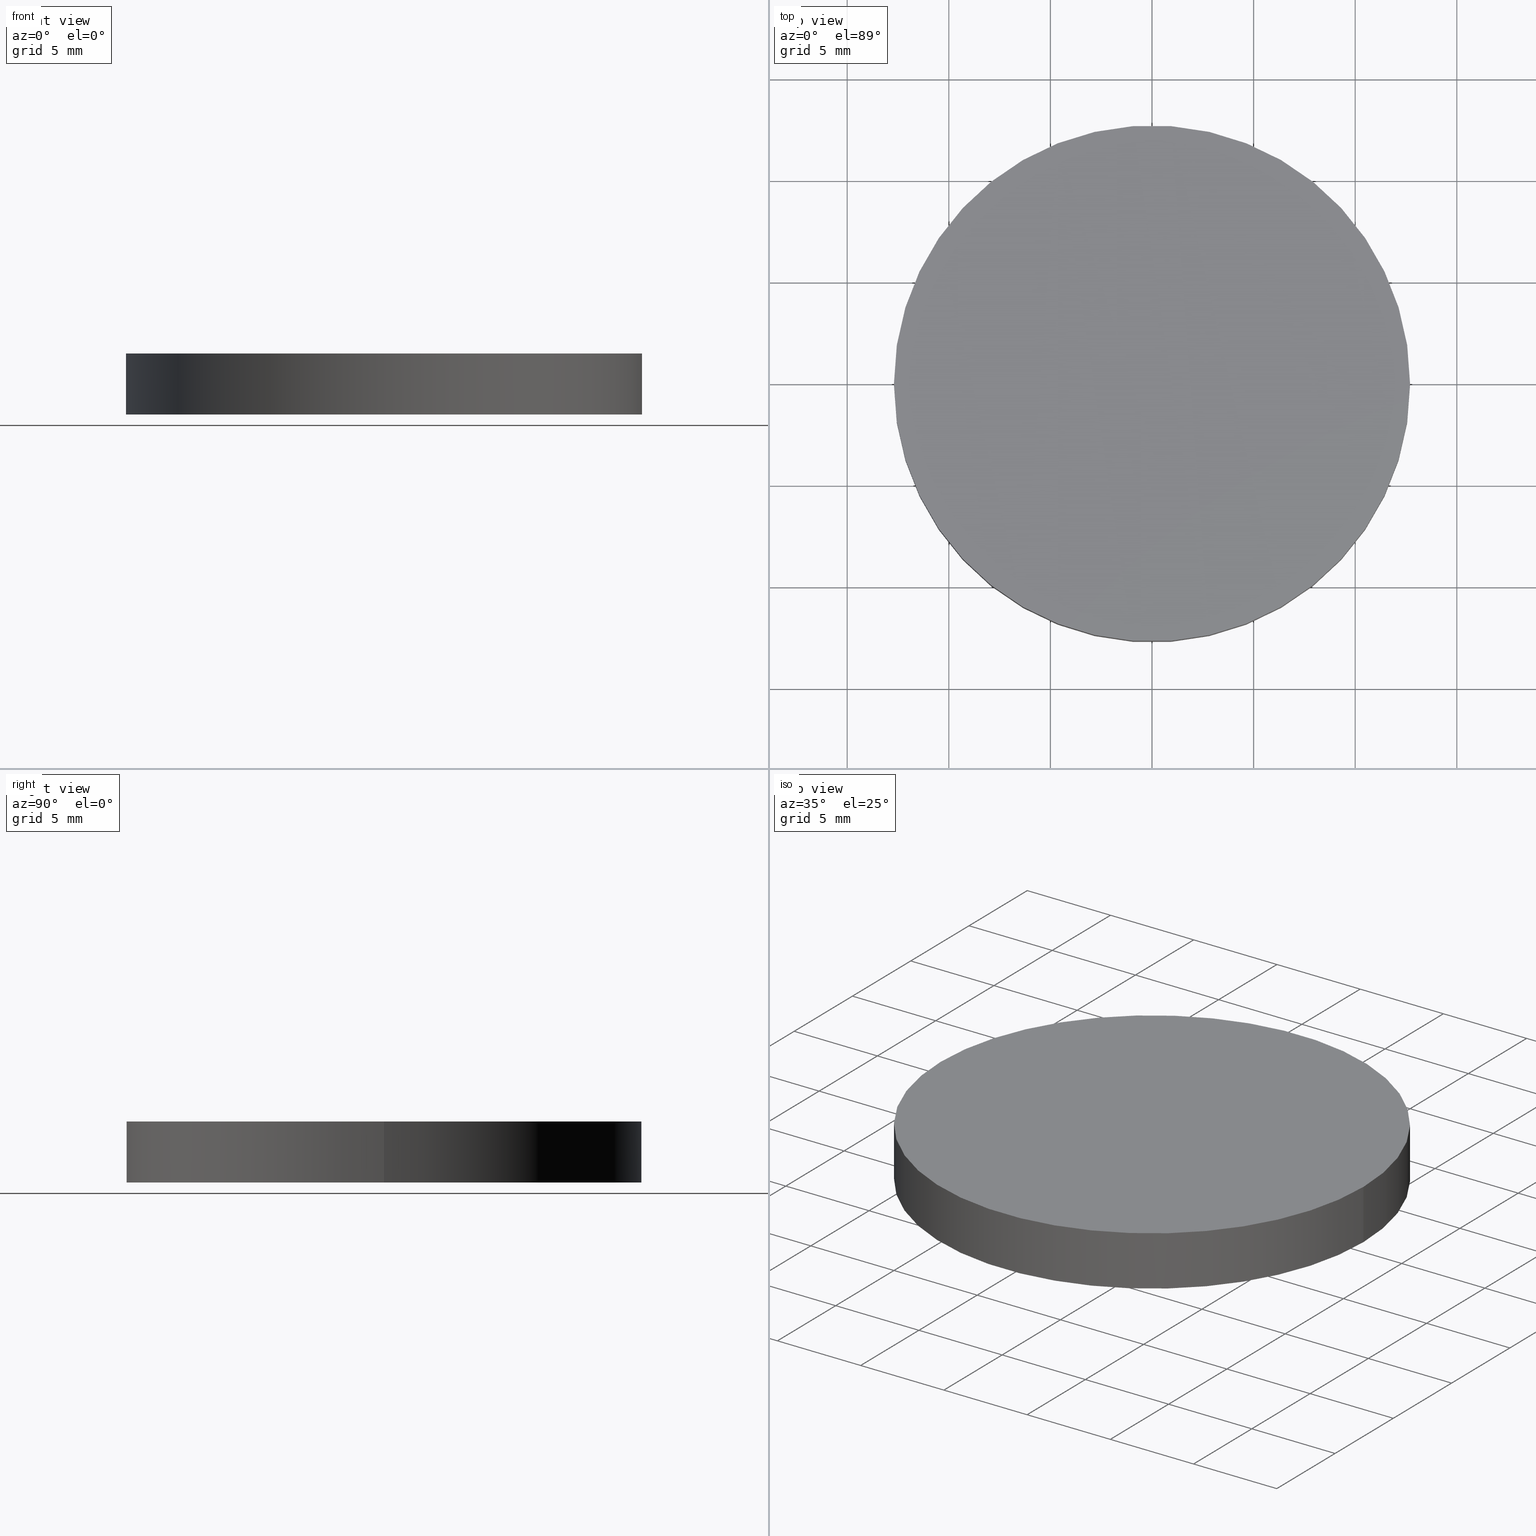
[diagram: canonical four-view strip — front | top / right | iso, engineering-drawing reading convention]
A machine part, canonical four-view strip (front | top / right | iso — engineering-drawing reading convention). The complete STEP part file that produces these views, byte-faithful:
ISO-10303-21;
HEADER;
FILE_DESCRIPTION (( 'STEP AP214' ),
    '1' );
FILE_NAME ('190144.STEP',
    '2019-07-18T02:43:49',
    ( 'user' ),
    ( '΢���й�' ),
    'SwSTEP 2.0',
    'SolidWorks 2016',
    '' );
FILE_SCHEMA (( 'AUTOMOTIVE_DESIGN' ));
ENDSEC;

DATA;
#1 = DIRECTION ( 'NONE',  ( 1.000000000000000000, 0.0000000000000000000, 0.0000000000000000000 ) ) ;
#2 = SURFACE_STYLE_FILL_AREA ( #110 ) ;
#3 =( NAMED_UNIT ( * ) SI_UNIT ( $, .STERADIAN. ) SOLID_ANGLE_UNIT ( ) );
#4 = DIRECTION ( 'NONE',  ( 0.0000000000000000000, 0.0000000000000000000, 1.000000000000000000 ) ) ;
#5 = DIRECTION ( 'NONE',  ( 0.0000000000000000000, 0.0000000000000000000, 1.000000000000000000 ) ) ;
#6 = PRESENTATION_LAYER_ASSIGNMENT (  '', '', ( #68 ) ) ;
#7 = ADVANCED_BREP_SHAPE_REPRESENTATION ( '190144', ( #36, #118 ), #77 ) ;
#8 =( LENGTH_UNIT ( ) NAMED_UNIT ( * ) SI_UNIT ( .MILLI., .METRE. ) );
#9 = PRODUCT_DEFINITION ( 'δ֪', '', #79, #48 ) ;
#10 = CIRCLE ( 'NONE', #62, 12.69999999999999900 ) ;
#11 = CLOSED_SHELL ( 'NONE', ( #86, #30, #76, #129 ) ) ;
#12 =( GEOMETRIC_REPRESENTATION_CONTEXT ( 3 ) GLOBAL_UNCERTAINTY_ASSIGNED_CONTEXT ( ( #54 ) ) GLOBAL_UNIT_ASSIGNED_CONTEXT ( ( #8, #74, #137 ) ) REPRESENTATION_CONTEXT ( 'NONE', 'WORKASPACE' ) );
#13 =( NAMED_UNIT ( * ) SI_UNIT ( $, .STERADIAN. ) SOLID_ANGLE_UNIT ( ) );
#14 =( LENGTH_UNIT ( ) NAMED_UNIT ( * ) SI_UNIT ( .MILLI., .METRE. ) );
#15 = DIRECTION ( 'NONE',  ( 1.000000000000000000, 0.0000000000000000000, 0.0000000000000000000 ) ) ;
#16 = CARTESIAN_POINT ( 'NONE',  ( -12.69999999999999900, 0.0000000000000000000, 3.000000000000000000 ) ) ;
#17 = SURFACE_SIDE_STYLE ('',( #78 ) ) ;
#18 = DIRECTION ( 'NONE',  ( -0.0000000000000000000, -0.0000000000000000000, -1.000000000000000000 ) ) ;
#19 = ORIENTED_EDGE ( 'NONE', *, *, #45, .T. ) ;
#20 = MECHANICAL_DESIGN_GEOMETRIC_PRESENTATION_REPRESENTATION (  '', ( #41 ), #12 ) ;
#21 = AXIS2_PLACEMENT_3D ( 'NONE', #124, #49, #113 ) ;
#22 = CIRCLE ( 'NONE', #29, 12.69999999999999900 ) ;
#23 =( LENGTH_UNIT ( ) NAMED_UNIT ( * ) SI_UNIT ( .MILLI., .METRE. ) );
#24 = DIRECTION ( 'NONE',  ( -0.0000000000000000000, -0.0000000000000000000, -1.000000000000000000 ) ) ;
#25 = CARTESIAN_POINT ( 'NONE',  ( 0.0000000000000000000, 0.0000000000000000000, 0.0000000000000000000 ) ) ;
#26 = DIRECTION ( 'NONE',  ( 0.0000000000000000000, 0.0000000000000000000, 1.000000000000000000 ) ) ;
#27 = CARTESIAN_POINT ( 'NONE',  ( 0.0000000000000000000, 0.0000000000000000000, 3.000000000000000000 ) ) ;
#28 = ORIENTED_EDGE ( 'NONE', *, *, #95, .T. ) ;
#29 = AXIS2_PLACEMENT_3D ( 'NONE', #103, #26, #93 ) ;
#30 = ADVANCED_FACE ( 'NONE', ( #130 ), #52, .T. ) ;
#31 = UNCERTAINTY_MEASURE_WITH_UNIT (LENGTH_MEASURE( 1.000000000000000100E-005 ), #23, 'distance_accuracy_value', 'NONE');
#32 = ORIENTED_EDGE ( 'NONE', *, *, #64, .F. ) ;
#33 = COLOUR_RGB ( '',1.000000000000000000, 1.000000000000000000, 1.000000000000000000 ) ;
#34 = ORIENTED_EDGE ( 'NONE', *, *, #95, .F. ) ;
#35 = SURFACE_SIDE_STYLE ('',( #2 ) ) ;
#36 = MANIFOLD_SOLID_BREP ( '͹̨-����1', #11 ) ;
#37 = DIRECTION ( 'NONE',  ( -1.000000000000000000, 0.0000000000000000000, 0.0000000000000000000 ) ) ;
#38 = DIRECTION ( 'NONE',  ( 0.0000000000000000000, 0.0000000000000000000, 1.000000000000000000 ) ) ;
#39 = VERTEX_POINT ( 'NONE', #16 ) ;
#40 = CARTESIAN_POINT ( 'NONE',  ( -12.69999999999999900, 0.0000000000000000000, 3.000000000000000000 ) ) ;
#41 = STYLED_ITEM ( 'NONE', ( #139 ), #36 ) ;
#42 = VECTOR ( 'NONE', #18, 1000.000000000000000 ) ;
#43 = EDGE_LOOP ( 'NONE', ( #19, #98 ) ) ;
#44 = PRESENTATION_LAYER_ASSIGNMENT (  '', '', ( #41 ) ) ;
#45 = EDGE_CURVE ( 'NONE', #39, #66, #22, .T. ) ;
#46 = FILL_AREA_STYLE_COLOUR ( '', #33 ) ;
#47 = DIRECTION ( 'NONE',  ( 0.0000000000000000000, 0.0000000000000000000, 1.000000000000000000 ) ) ;
#48 = PRODUCT_DEFINITION_CONTEXT ( 'detailed design', #131, 'design' ) ;
#49 = DIRECTION ( 'NONE',  ( 0.0000000000000000000, 0.0000000000000000000, 1.000000000000000000 ) ) ;
#50 = AXIS2_PLACEMENT_3D ( 'NONE', #82, #4, #71 ) ;
#51 = CARTESIAN_POINT ( 'NONE',  ( 0.0000000000000000000, 0.0000000000000000000, 3.000000000000000000 ) ) ;
#52 = CYLINDRICAL_SURFACE ( 'NONE', #138, 12.69999999999999900 ) ;
#53 = EDGE_CURVE ( 'NONE', #39, #94, #127, .T. ) ;
#54 = UNCERTAINTY_MEASURE_WITH_UNIT (LENGTH_MEASURE( 1.000000000000000100E-005 ), #8, 'distance_accuracy_value', 'NONE');
#55 = ORIENTED_EDGE ( 'NONE', *, *, #53, .F. ) ;
#56 = AXIS2_PLACEMENT_3D ( 'NONE', #51, #5, #72 ) ;
#57 = EDGE_CURVE ( 'NONE', #66, #39, #99, .T. ) ;
#58 = ORIENTED_EDGE ( 'NONE', *, *, #53, .T. ) ;
#59 = APPLICATION_PROTOCOL_DEFINITION ( 'draft international standard', 'automotive_design', 1998, #131 ) ;
#60 = MECHANICAL_DESIGN_GEOMETRIC_PRESENTATION_REPRESENTATION (  '', ( #68 ), #116 ) ;
#61 = CARTESIAN_POINT ( 'NONE',  ( 0.0000000000000000000, 0.0000000000000000000, 3.000000000000000000 ) ) ;
#62 = AXIS2_PLACEMENT_3D ( 'NONE', #25, #92, #15 ) ;
#63 = FACE_OUTER_BOUND ( 'NONE', #140, .T. ) ;
#64 = EDGE_CURVE ( 'NONE', #94, #134, #10, .T. ) ;
#65 = FACE_OUTER_BOUND ( 'NONE', #43, .T. ) ;
#66 = VERTEX_POINT ( 'NONE', #73 ) ;
#67 = PRODUCT_RELATED_PRODUCT_CATEGORY ( 'part', '', ( #81 ) ) ;
#68 = STYLED_ITEM ( 'NONE', ( #90 ), #7 ) ;
#69 = LINE ( 'NONE', #91, #89 ) ;
#70 = PRODUCT_CONTEXT ( 'NONE', #121, 'mechanical' ) ;
#71 = DIRECTION ( 'NONE',  ( 1.000000000000000000, 0.0000000000000000000, 0.0000000000000000000 ) ) ;
#72 = DIRECTION ( 'NONE',  ( 1.000000000000000000, 0.0000000000000000000, -0.0000000000000000000 ) ) ;
#73 = CARTESIAN_POINT ( 'NONE',  ( 12.69999999999999900, 1.555301434917138400E-015, 3.000000000000000000 ) ) ;
#74 =( NAMED_UNIT ( * ) PLANE_ANGLE_UNIT ( ) SI_UNIT ( $, .RADIAN. ) );
#75 = AXIS2_PLACEMENT_3D ( 'NONE', #133, #47, #111 ) ;
#76 = ADVANCED_FACE ( 'NONE', ( #65 ), #83, .T. ) ;
#77 =( GEOMETRIC_REPRESENTATION_CONTEXT ( 3 ) GLOBAL_UNCERTAINTY_ASSIGNED_CONTEXT ( ( #105 ) ) GLOBAL_UNIT_ASSIGNED_CONTEXT ( ( #14, #80, #3 ) ) REPRESENTATION_CONTEXT ( 'NONE', 'WORKASPACE' ) );
#78 = SURFACE_STYLE_FILL_AREA ( #96 ) ;
#79 = PRODUCT_DEFINITION_FORMATION_WITH_SPECIFIED_SOURCE ( '�κ�', '', #81, .NOT_KNOWN. ) ;
#80 =( NAMED_UNIT ( * ) PLANE_ANGLE_UNIT ( ) SI_UNIT ( $, .RADIAN. ) );
#81 = PRODUCT ( '190144', '190144', '', ( #70 ) ) ;
#82 = CARTESIAN_POINT ( 'NONE',  ( 0.0000000000000000000, 0.0000000000000000000, 0.0000000000000000000 ) ) ;
#83 = PLANE ( 'NONE',  #56 ) ;
#84 = SURFACE_STYLE_USAGE ( .BOTH. , #17 ) ;
#85 = ORIENTED_EDGE ( 'NONE', *, *, #106, .F. ) ;
#86 = ADVANCED_FACE ( 'NONE', ( #97 ), #117, .T. ) ;
#87 = EDGE_LOOP ( 'NONE', ( #114, #109, #28, #55 ) ) ;
#88 =( NAMED_UNIT ( * ) PLANE_ANGLE_UNIT ( ) SI_UNIT ( $, .RADIAN. ) );
#89 = VECTOR ( 'NONE', #24, 1000.000000000000000 ) ;
#90 = PRESENTATION_STYLE_ASSIGNMENT (( #101 ) ) ;
#91 = CARTESIAN_POINT ( 'NONE',  ( 12.69999999999999900, 1.555301434917138400E-015, 3.000000000000000000 ) ) ;
#92 = DIRECTION ( 'NONE',  ( 0.0000000000000000000, 0.0000000000000000000, 1.000000000000000000 ) ) ;
#93 = DIRECTION ( 'NONE',  ( 1.000000000000000000, 0.0000000000000000000, 0.0000000000000000000 ) ) ;
#94 = VERTEX_POINT ( 'NONE', #112 ) ;
#95 = EDGE_CURVE ( 'NONE', #134, #94, #120, .T. ) ;
#96 = FILL_AREA_STYLE ('',( #115 ) ) ;
#97 = FACE_OUTER_BOUND ( 'NONE', #87, .T. ) ;
#98 = ORIENTED_EDGE ( 'NONE', *, *, #57, .T. ) ;
#99 = CIRCLE ( 'NONE', #21, 12.69999999999999900 ) ;
#100 = ORIENTED_EDGE ( 'NONE', *, *, #64, .T. ) ;
#101 = SURFACE_STYLE_USAGE ( .BOTH. , #35 ) ;
#102 = CARTESIAN_POINT ( 'NONE',  ( 0.0000000000000000000, 0.0000000000000000000, 0.0000000000000000000 ) ) ;
#103 = CARTESIAN_POINT ( 'NONE',  ( 0.0000000000000000000, 0.0000000000000000000, 3.000000000000000000 ) ) ;
#104 = SHAPE_DEFINITION_REPRESENTATION ( #108, #7 ) ;
#105 = UNCERTAINTY_MEASURE_WITH_UNIT (LENGTH_MEASURE( 1.000000000000000100E-005 ), #14, 'distance_accuracy_value', 'NONE');
#106 = EDGE_CURVE ( 'NONE', #66, #134, #69, .T. ) ;
#107 = COLOUR_RGB ( '',1.000000000000000000, 1.000000000000000000, 1.000000000000000000 ) ;
#108 = PRODUCT_DEFINITION_SHAPE ( 'NONE', 'NONE',  #9 ) ;
#109 = ORIENTED_EDGE ( 'NONE', *, *, #106, .T. ) ;
#110 = FILL_AREA_STYLE ('',( #46 ) ) ;
#111 = DIRECTION ( 'NONE',  ( 1.000000000000000000, 0.0000000000000000000, -0.0000000000000000000 ) ) ;
#112 = CARTESIAN_POINT ( 'NONE',  ( -12.69999999999999900, 0.0000000000000000000, 0.0000000000000000000 ) ) ;
#113 = DIRECTION ( 'NONE',  ( 1.000000000000000000, 0.0000000000000000000, 0.0000000000000000000 ) ) ;
#114 = ORIENTED_EDGE ( 'NONE', *, *, #57, .F. ) ;
#115 = FILL_AREA_STYLE_COLOUR ( '', #107 ) ;
#116 =( GEOMETRIC_REPRESENTATION_CONTEXT ( 3 ) GLOBAL_UNCERTAINTY_ASSIGNED_CONTEXT ( ( #31 ) ) GLOBAL_UNIT_ASSIGNED_CONTEXT ( ( #23, #88, #13 ) ) REPRESENTATION_CONTEXT ( 'NONE', 'WORKASPACE' ) );
#117 = CYLINDRICAL_SURFACE ( 'NONE', #128, 12.69999999999999900 ) ;
#118 = AXIS2_PLACEMENT_3D ( 'NONE', #102, #38, #1 ) ;
#119 = ORIENTED_EDGE ( 'NONE', *, *, #45, .F. ) ;
#120 = CIRCLE ( 'NONE', #50, 12.69999999999999900 ) ;
#121 = APPLICATION_CONTEXT ( 'automotive_design' ) ;
#122 = CARTESIAN_POINT ( 'NONE',  ( 12.69999999999999900, 1.555301434917138400E-015, 0.0000000000000000000 ) ) ;
#123 = DIRECTION ( 'NONE',  ( -0.0000000000000000000, -0.0000000000000000000, -1.000000000000000000 ) ) ;
#124 = CARTESIAN_POINT ( 'NONE',  ( 0.0000000000000000000, 0.0000000000000000000, 3.000000000000000000 ) ) ;
#125 = EDGE_LOOP ( 'NONE', ( #85, #119, #58, #100 ) ) ;
#126 = DIRECTION ( 'NONE',  ( -0.0000000000000000000, -0.0000000000000000000, -1.000000000000000000 ) ) ;
#127 = LINE ( 'NONE', #40, #42 ) ;
#128 = AXIS2_PLACEMENT_3D ( 'NONE', #61, #123, #135 ) ;
#129 = ADVANCED_FACE ( 'NONE', ( #63 ), #136, .F. ) ;
#130 = FACE_OUTER_BOUND ( 'NONE', #125, .T. ) ;
#131 = APPLICATION_CONTEXT ( 'automotive_design' ) ;
#132 = APPLICATION_PROTOCOL_DEFINITION ( 'draft international standard', 'automotive_design', 1998, #121 ) ;
#133 = CARTESIAN_POINT ( 'NONE',  ( 0.0000000000000000000, 0.0000000000000000000, 0.0000000000000000000 ) ) ;
#134 = VERTEX_POINT ( 'NONE', #122 ) ;
#135 = DIRECTION ( 'NONE',  ( -1.000000000000000000, 0.0000000000000000000, 0.0000000000000000000 ) ) ;
#136 = PLANE ( 'NONE',  #75 ) ;
#137 =( NAMED_UNIT ( * ) SI_UNIT ( $, .STERADIAN. ) SOLID_ANGLE_UNIT ( ) );
#138 = AXIS2_PLACEMENT_3D ( 'NONE', #27, #126, #37 ) ;
#139 = PRESENTATION_STYLE_ASSIGNMENT (( #84 ) ) ;
#140 = EDGE_LOOP ( 'NONE', ( #32, #34 ) ) ;
ENDSEC;
END-ISO-10303-21;
